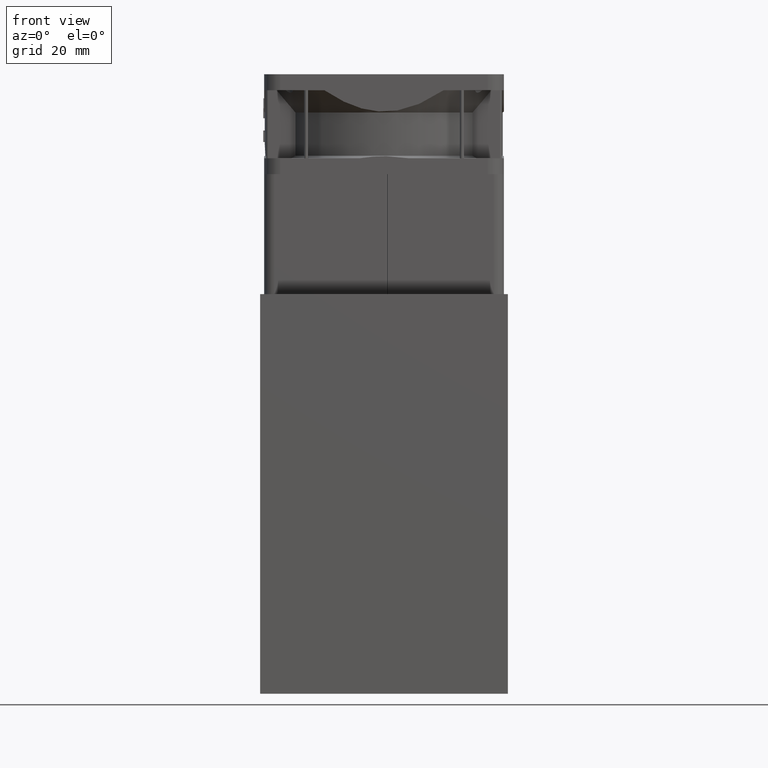
[diagram: clean part render]
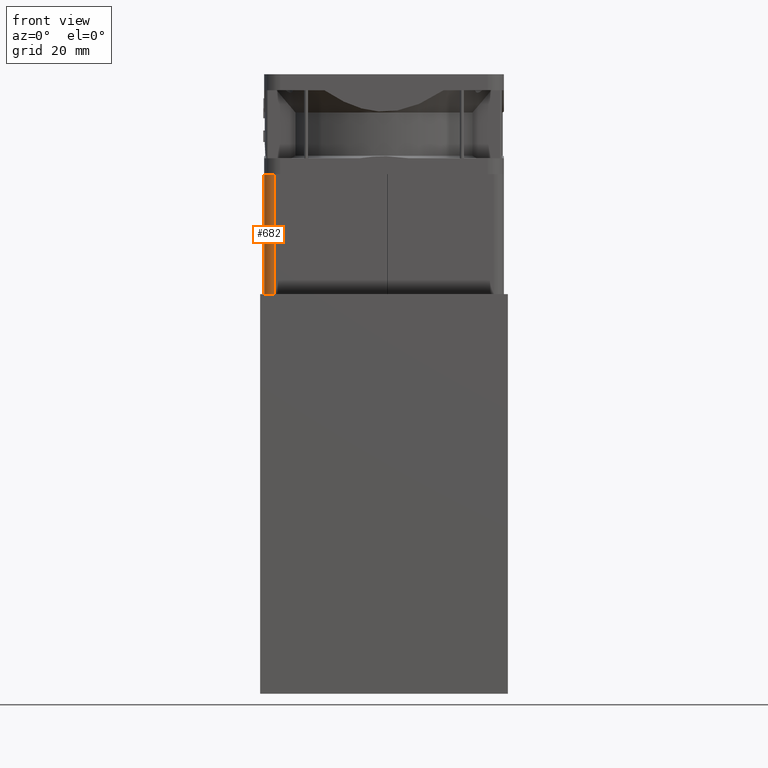
[diagram: same view with one face highlighted and labeled with its STEP entity id]
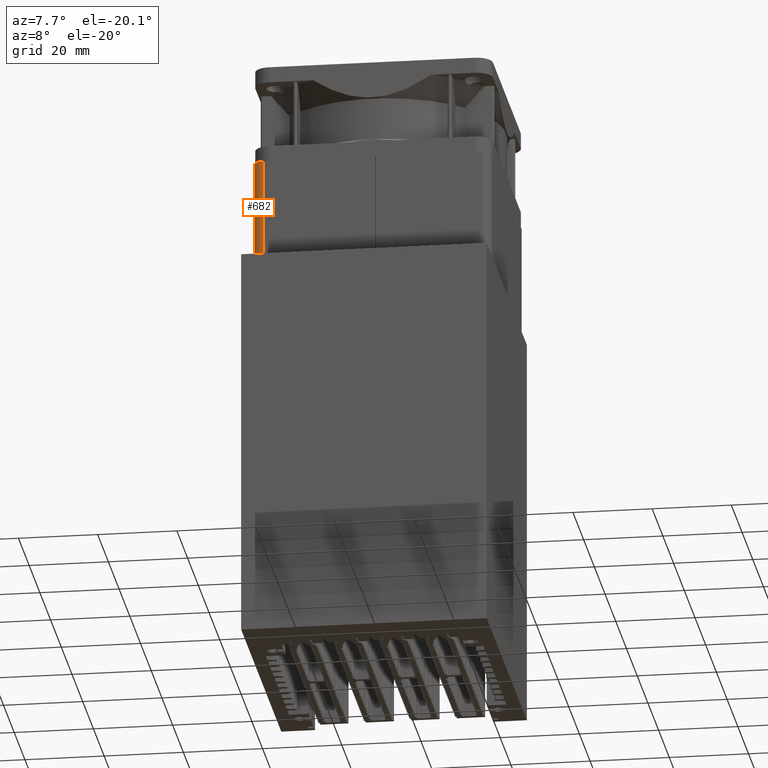
[diagram: same view with one face highlighted and labeled with its STEP entity id]
A machine part, front view. The second image highlights one B-rep face of the part: STEP entity #682.
A second angle (auxiliary view) of the same face is appended — the face is thin or edge-on in the first view.
In plain terms, the highlighted cylindrical surface (edge-blend (fillet) strip) has radius 2.521 mm, axis along (0, -0, -1).
Its self-contained STEP definition (entity closure, byte-faithful):
#57 = CYLINDRICAL_SURFACE ( 'NONE', #21173, 2.521008403361342687 ) ;
#630 = DIRECTION ( 'NONE',  ( 3.363116314379565451E-44, 1.567082167785079599E-30, -1.000000000000000000 ) ) ;
#657 = ORIENTED_EDGE ( 'NONE', *, *, #21089, .F. ) ;
#682 = ADVANCED_FACE ( 'NONE', ( #17463 ), #57, .T. ) ;
#3360 = EDGE_CURVE ( 'NONE', #8340, #13925, #25469, .T. ) ;
#3404 = ORIENTED_EDGE ( 'NONE', *, *, #11075, .F. ) ;
#4265 = VERTEX_POINT ( 'NONE', #19210 ) ;
#7466 = DIRECTION ( 'NONE',  ( 3.363116314379565451E-44, 1.567082167785079599E-30, -1.000000000000000000 ) ) ;
#8340 = VERTEX_POINT ( 'NONE', #10110 ) ;
#8698 = CARTESIAN_POINT ( 'NONE',  ( -27.47899159663865731, 15.37815126050419856, 30.00000000000000000 ) ) ;
#8852 = CIRCLE ( 'NONE', #19678, 2.521008403361342687 ) ;
#9148 = AXIS2_PLACEMENT_3D ( 'NONE', #26163, #25836, #23096 ) ;
#10110 = CARTESIAN_POINT ( 'NONE',  ( -27.47899159663865731, 15.37815126050419856, 30.00000000000000000 ) ) ;
#10359 = ORIENTED_EDGE ( 'NONE', *, *, #15680, .T. ) ;
#10621 = DIRECTION ( 'NONE',  ( 3.363116314379565451E-44, 1.567082167785079599E-30, -1.000000000000000000 ) ) ;
#11075 = EDGE_CURVE ( 'NONE', #8340, #4265, #17388, .T. ) ;
#11362 = CARTESIAN_POINT ( 'NONE',  ( -30.00000000000000000, 12.85714285714283811, 0.000000000000000000 ) ) ;
#13925 = VERTEX_POINT ( 'NONE', #17874 ) ;
#13942 = DIRECTION ( 'NONE',  ( 1.000000000000000000, 0.000000000000000000, -3.363116314379558481E-44 ) ) ;
#15244 = VECTOR ( 'NONE', #630, 1000.000000000000000 ) ;
#15680 = EDGE_CURVE ( 'NONE', #13925, #28431, #8852, .T. ) ;
#17388 = CIRCLE ( 'NONE', #9148, 2.521008403361342687 ) ;
#17463 = FACE_OUTER_BOUND ( 'NONE', #28169, .T. ) ;
#17723 = LINE ( 'NONE', #20475, #15244 ) ;
#17874 = CARTESIAN_POINT ( 'NONE',  ( -27.47899159663865731, 15.37815126050419856, 0.000000000000000000 ) ) ;
#19210 = CARTESIAN_POINT ( 'NONE',  ( -30.00000000000000000, 12.85714285714283811, 30.00000000000000000 ) ) ;
#19450 = DIRECTION ( 'NONE',  ( -3.363116314379565451E-44, -1.567082167785079599E-30, 1.000000000000000000 ) ) ;
#19678 = AXIS2_PLACEMENT_3D ( 'NONE', #29290, #19450, #13942 ) ;
#20475 = CARTESIAN_POINT ( 'NONE',  ( -30.00000000000000000, 12.85714285714283811, 30.00000000000000000 ) ) ;
#21089 = EDGE_CURVE ( 'NONE', #4265, #28431, #17723, .T. ) ;
#21173 = AXIS2_PLACEMENT_3D ( 'NONE', #27306, #7466, #27156 ) ;
#23096 = DIRECTION ( 'NONE',  ( 1.000000000000000000, 0.000000000000000000, 0.000000000000000000 ) ) ;
#25181 = VECTOR ( 'NONE', #10621, 1000.000000000000000 ) ;
#25233 = ORIENTED_EDGE ( 'NONE', *, *, #3360, .T. ) ;
#25469 = LINE ( 'NONE', #8698, #25181 ) ;
#25836 = DIRECTION ( 'NONE',  ( -3.363116314379565451E-44, -1.567082167785079599E-30, 1.000000000000000000 ) ) ;
#26163 = CARTESIAN_POINT ( 'NONE',  ( -27.47899159663865731, 12.85714285714285587, 30.00000000000000000 ) ) ;
#27156 = DIRECTION ( 'NONE',  ( -1.000000000000000000, 0.000000000000000000, 0.000000000000000000 ) ) ;
#27306 = CARTESIAN_POINT ( 'NONE',  ( -27.47899159663865731, 12.85714285714285587, 30.00000000000000000 ) ) ;
#28169 = EDGE_LOOP ( 'NONE', ( #10359, #657, #3404, #25233 ) ) ;
#28431 = VERTEX_POINT ( 'NONE', #11362 ) ;
#29290 = CARTESIAN_POINT ( 'NONE',  ( -27.47899159663865731, 12.85714285714285587, 0.000000000000000000 ) ) ;